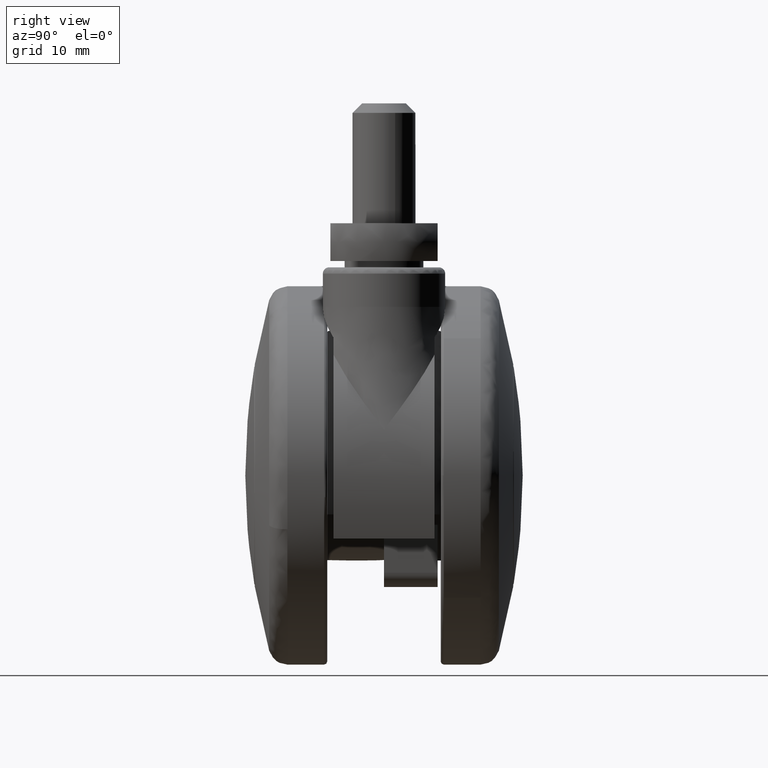
[diagram: clean part render]
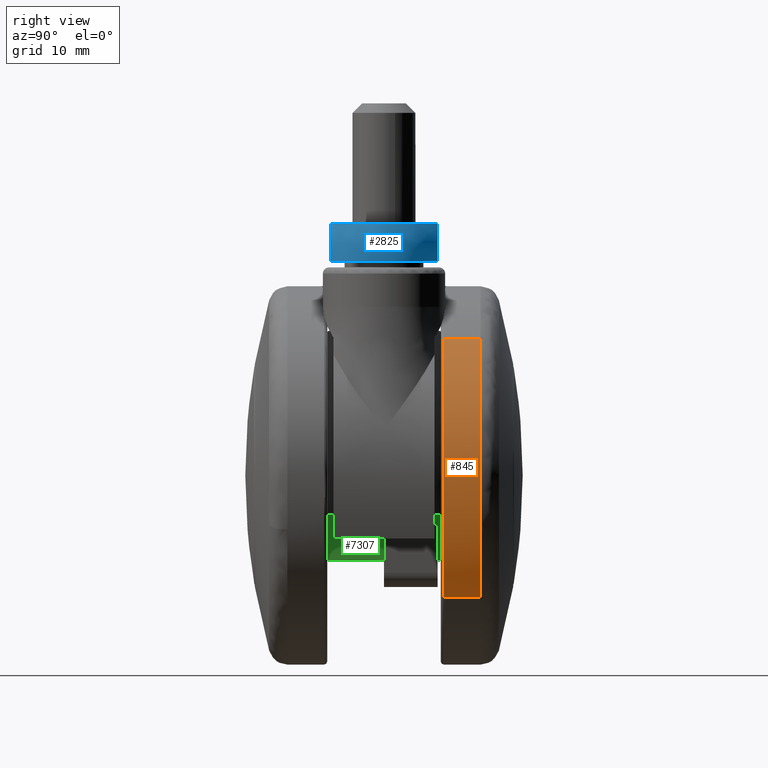
[diagram: same view with three faces highlighted in distinct colors, each labeled with its STEP entity id]
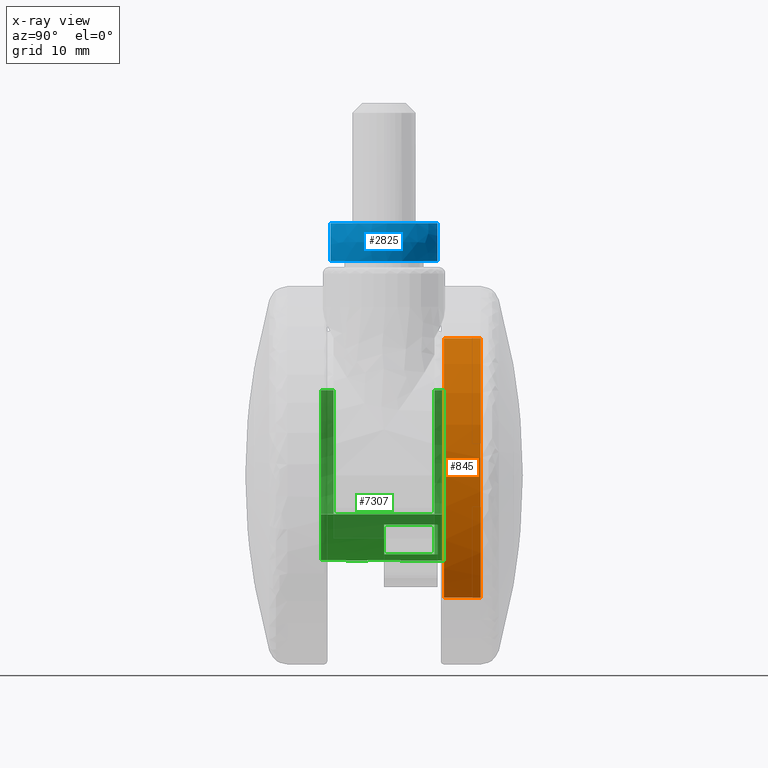
[diagram: x-ray of the same camera — body ghosted, the three highlighted faces saturated]
A machine part, right view with three faces highlighted in distinct colors.
The next image is the same camera in x-ray (body ghosted, the three faces saturated) — at least one of them is partly hidden behind the body in this view.
Their STEP definitions:

[orange] entity #845 — the highlighted face is a freeform B-spline surface patch.
#628=CARTESIAN_POINT('',(-22.906671958253089,-15.324326000000170,-19.372257994280488));
#629=VERTEX_POINT('',#628);
#645=CARTESIAN_POINT('',(-22.906671925308000,-9.499999999263743,-19.372258033236310));
#646=VERTEX_POINT('',#645);
#647=CARTESIAN_POINT('',(-22.906671925308000,-9.499999999263743,-19.372258033236310));
#648=CARTESIAN_POINT('',(-22.906671958253089,-15.324326000000170,-19.372257994280488));
#649=QUASI_UNIFORM_CURVE('',1,(#647,#648),.UNSPECIFIED.,.F.,.U.);
#650=EDGE_CURVE('',#646,#629,#649,.T.);
#699=CARTESIAN_POINT('',(-20.650636494735870,-9.499999999429269,21.761231866837889));
#700=VERTEX_POINT('',#699);
#714=CARTESIAN_POINT('',(-20.650636504086009,-15.324326000000100,21.761231857964962));
#715=VERTEX_POINT('',#714);
#716=CARTESIAN_POINT('',(-20.650636494735870,-9.499999999429269,21.761231866837889));
#717=CARTESIAN_POINT('',(-20.650636504086009,-15.324326000000100,21.761231857964962));
#718=QUASI_UNIFORM_CURVE('',1,(#716,#717),.UNSPECIFIED.,.F.,.U.);
#719=EDGE_CURVE('',#700,#715,#718,.T.);
#784=CARTESIAN_POINT('',(-20.650637270812609,-9.354391847863754,21.761231130368621));
#785=CARTESIAN_POINT('',(-41.200930745252087,-9.354391847863754,2.259730787533548));
#786=CARTESIAN_POINT('',(-22.906669288213937,-9.354391847863754,-19.372261151460755));
#787=CARTESIAN_POINT('',(-20.650637270812609,-15.473574354049020,21.761231130368621));
#788=CARTESIAN_POINT('',(-41.200930745252087,-15.473574354049017,2.259730787533548));
#789=CARTESIAN_POINT('',(-22.906669288213937,-15.473574354049017,-19.372261151460755));
#797=(BOUNDED_SURFACE()B_SPLINE_SURFACE(2,1,((#784,#787),(#785,#788),(#786,#789)),.UNSPECIFIED.,.F.,.F.,.U.)B_SPLINE_SURFACE_WITH_KNOTS((3,3),(2,2),(0.0,47.704306761263702),(0.0,6.119182506185267),.UNSPECIFIED.)GEOMETRIC_REPRESENTATION_ITEM()RATIONAL_B_SPLINE_SURFACE(((1.0,1.0),(0.718822509939086,0.718822509939086),(0.977505800795127,0.977505800795127)))REPRESENTATION_ITEM('')SURFACE());
#798=CARTESIAN_POINT('',(-20.650636504086027,-15.324326000000100,21.761231857964983));
#799=CARTESIAN_POINT('',(-30.0,-15.324326000000106,12.889017805063213));
#800=CARTESIAN_POINT('',(-30.0,-15.324326000000100,-1.653219E-015));
#801=CARTESIAN_POINT('',(-30.0,-15.324326000000099,-10.984772209580642));
#802=CARTESIAN_POINT('',(-22.906671958253089,-15.324326000000172,-19.372257994280485));
#810=(BOUNDED_CURVE()B_SPLINE_CURVE(2,(#798,#799,#800,#801,#802),.UNSPECIFIED.,.F.,.U.)B_SPLINE_CURVE_WITH_KNOTS((3,2,3),(0.621049521341824,0.750000000000000,0.862408068890895),.UNSPECIFIED.)CURVE()GEOMETRIC_REPRESENTATION_ITEM()RATIONAL_B_SPLINE_CURVE((0.853699661763192,0.848925116953086,1.0,0.868305755527766,0.855039476696886))REPRESENTATION_ITEM(''));
#811=EDGE_CURVE('',#715,#629,#810,.T.);
#812=ORIENTED_EDGE('',*,*,#811,.F.);
#813=ORIENTED_EDGE('',*,*,#719,.F.);
#814=CARTESIAN_POINT('',(-30.0,-9.499999997921702,1.242836E-014));
#815=VERTEX_POINT('',#814);
#816=CARTESIAN_POINT('',(-20.650636494735888,-9.499999999429246,21.761231866837889));
#817=CARTESIAN_POINT('',(-29.999999999999936,-9.499999998814607,12.889017812697901));
#818=CARTESIAN_POINT('',(-30.0,-9.499999997921702,1.242836E-014));
#826=(BOUNDED_CURVE()B_SPLINE_CURVE(2,(#816,#817,#818),.UNSPECIFIED.,.F.,.U.)B_SPLINE_CURVE_WITH_KNOTS((3,3),(0.621049521276981,0.749999999999999),.UNSPECIFIED.)CURVE()GEOMETRIC_REPRESENTATION_ITEM()RATIONAL_B_SPLINE_CURVE((0.853699661767994,0.848925116877117,0.999999999999998))REPRESENTATION_ITEM(''));
#827=EDGE_CURVE('',#700,#815,#826,.T.);
#828=ORIENTED_EDGE('',*,*,#827,.T.);
#829=CARTESIAN_POINT('',(-30.000000000000011,-9.499999997921705,1.242836E-014));
#830=CARTESIAN_POINT('',(-30.0,-9.499999998682689,-10.984772238510228));
#831=CARTESIAN_POINT('',(-22.906671925308004,-9.499999999263743,-19.372258033236317));
#839=(BOUNDED_CURVE()B_SPLINE_CURVE(2,(#829,#830,#831),.UNSPECIFIED.,.F.,.U.)B_SPLINE_CURVE_WITH_KNOTS((3,3),(0.750000000000000,0.862408069147947),.UNSPECIFIED.)CURVE()GEOMETRIC_REPRESENTATION_ITEM()RATIONAL_B_SPLINE_CURVE((1.0,0.868305755226611,0.855039476636212))REPRESENTATION_ITEM(''));
#840=EDGE_CURVE('',#815,#646,#839,.T.);
#841=ORIENTED_EDGE('',*,*,#840,.T.);
#842=ORIENTED_EDGE('',*,*,#650,.T.);
#843=EDGE_LOOP('',(#812,#813,#828,#841,#842));
#844=FACE_OUTER_BOUND('',#843,.T.);
#845=ADVANCED_FACE('',(#844),#797,.T.);

[blue] entity #2825 — the highlighted face is a freeform B-spline surface patch.
#2575=CARTESIAN_POINT('',(22.267826903324650,8.500000000000000,34.0));
#2576=VERTEX_POINT('',#2575);
#2583=CARTESIAN_POINT('',(22.267826915622049,8.500000000000000,40.0));
#2584=VERTEX_POINT('',#2583);
#2590=CARTESIAN_POINT('',(22.267826903324650,8.500000000000000,34.0));
#2591=CARTESIAN_POINT('',(22.334983241168739,8.500000000000002,34.112491042615488));
#2592=CARTESIAN_POINT('',(22.398567388449258,8.499999999999998,34.227495553251870));
#2593=CARTESIAN_POINT('',(22.518411288828950,8.500000000000002,34.462658171517731));
#2594=CARTESIAN_POINT('',(22.574777453791722,8.500000000000000,34.583139904142641));
#2595=CARTESIAN_POINT('',(22.730261735484842,8.500000000000000,34.947023042857793));
#2596=CARTESIAN_POINT('',(22.816694363230699,8.500000000000002,35.194356753575690));
#2597=CARTESIAN_POINT('',(22.955909452838149,8.499999999999998,35.698294523716037));
#2598=CARTESIAN_POINT('',(23.008693105005431,8.500000000000000,35.954898255218893));
#2599=CARTESIAN_POINT('',(23.061879759538780,8.500000000000000,36.346963563337987));
#2600=CARTESIAN_POINT('',(23.075271971507640,8.500000000000002,36.479305299721361));
#2601=CARTESIAN_POINT('',(23.092890961339009,8.500000000000000,36.742746714432641));
#2602=CARTESIAN_POINT('',(23.097189781211920,8.500000000000002,36.874143072982463));
#2603=CARTESIAN_POINT('',(23.096837478866561,8.499999999999998,37.267379470799590));
#2604=CARTESIAN_POINT('',(23.078994585671310,8.500000000000002,37.528270930281671));
#2605=CARTESIAN_POINT('',(23.025877321016971,8.499999999999998,37.917713161515529));
#2606=CARTESIAN_POINT('',(23.003765123912391,8.499999999999998,38.047210384850189));
#2607=CARTESIAN_POINT('',(22.950560278992679,8.500000000000000,38.305559074856468));
#2608=CARTESIAN_POINT('',(22.919325779412411,8.500000000000000,38.434846171128953));
#2609=CARTESIAN_POINT('',(22.813286985125590,8.500000000000000,38.816478002368143));
#2610=CARTESIAN_POINT('',(22.726099055095649,8.500000000000004,39.063754872715428));
#2611=CARTESIAN_POINT('',(22.520443688352341,8.500000000000000,39.542951833184652));
#2612=CARTESIAN_POINT('',(22.402176168240828,8.500000000000000,39.774958509520140));
#2613=CARTESIAN_POINT('',(22.267826915622049,8.500000000000000,40.0));
#2614=B_SPLINE_CURVE_WITH_KNOTS('',3,(#2590,#2591,#2592,#2593,#2594,#2595,#2596,#2597,#2598,#2599,#2600,#2601,#2602,#2603,#2604,#2605,#2606,#2607,#2608,#2609,#2610,#2611,#2612,#2613),.UNSPECIFIED.,.F.,.U.,(4,2,2,2,2,2,2,2,2,2,2,4),(0.0,0.015625000000000,0.031250000000000,0.062500000000000,0.093750000000000,0.109375000000001,0.125000000000001,0.156250000000001,0.171875000000001,0.187500000000001,0.218750000000000,0.249801643268790),.UNSPECIFIED.);
#2615=EDGE_CURVE('',#2576,#2584,#2614,.T.);
#2625=CARTESIAN_POINT('',(22.267826903324650,-8.500000000000000,34.0));
#2626=VERTEX_POINT('',#2625);
#2627=CARTESIAN_POINT('',(22.267826915622098,-8.500000000000000,39.999999979401053));
#2628=VERTEX_POINT('',#2627);
#2629=CARTESIAN_POINT('',(22.267826903324661,-8.499999999999996,33.999999999999993));
#2630=CARTESIAN_POINT('',(22.334983241168750,-8.500000000000000,34.112491042615503));
#2631=CARTESIAN_POINT('',(22.398567388449269,-8.499999999999996,34.227495553251870));
#2632=CARTESIAN_POINT('',(22.518411288828961,-8.499999999999998,34.462658171517752));
#2633=CARTESIAN_POINT('',(22.574777453791729,-8.499999999999995,34.583139904142627));
#2634=CARTESIAN_POINT('',(22.730261735484831,-8.499999999999995,34.947023042857779));
#2635=CARTESIAN_POINT('',(22.816694363230699,-8.499999999999996,35.194356753575683));
#2636=CARTESIAN_POINT('',(22.955909452838160,-8.499999999999995,35.698294523716029));
#2637=CARTESIAN_POINT('',(23.008693105005431,-8.499999999999995,35.954898255218893));
#2638=CARTESIAN_POINT('',(23.061879759538780,-8.499999999999995,36.346963563337987));
#2639=CARTESIAN_POINT('',(23.075271971507640,-8.499999999999996,36.479305299721339));
#2640=CARTESIAN_POINT('',(23.092890961339020,-8.499999999999996,36.742746714432641));
#2641=CARTESIAN_POINT('',(23.097189781211920,-8.499999999999996,36.874143072982463));
#2642=CARTESIAN_POINT('',(23.096837478866561,-8.499999999999995,37.267379470799582));
#2643=CARTESIAN_POINT('',(23.078994585671321,-8.499999999999998,37.528270930281671));
#2644=CARTESIAN_POINT('',(23.025877321016988,-8.499999999999995,37.917713161515522));
#2645=CARTESIAN_POINT('',(23.003765123912402,-8.499999999999998,38.047210384850210));
#2646=CARTESIAN_POINT('',(22.950560278992700,-8.499999999999995,38.305559074856468));
#2647=CARTESIAN_POINT('',(22.919325779412421,-8.499999999999995,38.434846171128960));
#2648=CARTESIAN_POINT('',(22.813286985125600,-8.499999999999993,38.816478002368143));
#2649=CARTESIAN_POINT('',(22.726099055095649,-8.499999999999995,39.063754872715407));
#2650=CARTESIAN_POINT('',(22.520443690658020,-8.499999999999995,39.542951827812232));
#2651=CARTESIAN_POINT('',(22.402176173561511,-8.499999999999995,39.774958499082473));
#2652=CARTESIAN_POINT('',(22.267826915622098,-8.500000000000000,39.999999979401053));
#2653=B_SPLINE_CURVE_WITH_KNOTS('',3,(#2629,#2630,#2631,#2632,#2633,#2634,#2635,#2636,#2637,#2638,#2639,#2640,#2641,#2642,#2643,#2644,#2645,#2646,#2647,#2648,#2649,#2650,#2651,#2652),.UNSPECIFIED.,.F.,.U.,(4,2,2,2,2,2,2,2,2,2,2,4),(0.0,0.015625000000001,0.031250000000001,0.062500000000004,0.093750000000006,0.109375000000007,0.125000000000008,0.156250000000011,0.171875000000013,0.187500000000014,0.218750000000016,0.249801642570325),.UNSPECIFIED.);
#2654=EDGE_CURVE('',#2626,#2628,#2653,.T.);
#2735=CARTESIAN_POINT('',(22.267826915622049,8.500000000000000,40.0));
#2736=CARTESIAN_POINT('',(27.000000020647626,5.567262487995726,39.999999979401039));
#2737=CARTESIAN_POINT('',(27.000000020647619,0.0,39.999999979401053));
#2738=CARTESIAN_POINT('',(27.000000020647626,-5.567262487995699,39.999999979401039));
#2739=CARTESIAN_POINT('',(22.267826915622091,-8.499999999999989,39.999999979401053));
#2747=(BOUNDED_CURVE()B_SPLINE_CURVE(2,(#2735,#2736,#2737,#2738,#2739),.UNSPECIFIED.,.F.,.U.)B_SPLINE_CURVE_WITH_KNOTS((3,2,3),(0.0,0.500000000000000,1.0),.UNSPECIFIED.)CURVE()GEOMETRIC_REPRESENTATION_ITEM()RATIONAL_B_SPLINE_CURVE((1.0,0.873722693557437,1.0,0.873722693557437,1.0))REPRESENTATION_ITEM(''));
#2748=EDGE_CURVE('',#2584,#2628,#2747,.T.);
#2771=CARTESIAN_POINT('',(22.267826903324650,8.500000000000000,34.0));
#2772=CARTESIAN_POINT('',(27.000000020647619,5.567262494842013,34.000000020598947));
#2773=CARTESIAN_POINT('',(27.000000020647619,0.0,34.000000020598947));
#2774=CARTESIAN_POINT('',(27.000000020647619,-5.567262494842013,34.000000020598947));
#2775=CARTESIAN_POINT('',(22.267826903324650,-8.500000000000000,34.0));
#2783=(BOUNDED_CURVE()B_SPLINE_CURVE(2,(#2771,#2772,#2773,#2774,#2775),.UNSPECIFIED.,.F.,.U.)B_SPLINE_CURVE_WITH_KNOTS((3,2,3),(0.0,0.500000000000000,1.0),.UNSPECIFIED.)CURVE()GEOMETRIC_REPRESENTATION_ITEM()RATIONAL_B_SPLINE_CURVE((1.0,0.873722693303212,1.0,0.873722693303212,1.0))REPRESENTATION_ITEM(''));
#2784=EDGE_CURVE('',#2576,#2626,#2783,.T.);
#2796=CARTESIAN_POINT('',(21.656327215090670,8.743483306298941,33.716165167152013));
#2797=CARTESIAN_POINT('',(22.192967301305782,9.751166705374951,37.000000508377255));
#2798=CARTESIAN_POINT('',(21.656327066851581,8.743483027940926,40.283835739960033));
#2799=CARTESIAN_POINT('',(26.906052869913538,5.947750806792567,33.716165167152006));
#2800=CARTESIAN_POINT('',(28.047722005392970,6.633227011170749,37.000000508377255));
#2801=CARTESIAN_POINT('',(26.906052554543887,5.947750617439644,40.283835739960033));
#2802=CARTESIAN_POINT('',(26.906052869913548,0.0,33.716165167152027));
#2803=CARTESIAN_POINT('',(28.047722005392970,0.0,37.000000508377255));
#2804=CARTESIAN_POINT('',(26.906052554543901,0.0,40.283835739960018));
#2805=CARTESIAN_POINT('',(26.906052869913538,-5.947751379674218,33.716165167152013));
#2806=CARTESIAN_POINT('',(28.047722005392970,-6.633227650076810,37.000000508377248));
#2807=CARTESIAN_POINT('',(26.906052554543891,-5.947751190321276,40.283835739960018));
#2808=CARTESIAN_POINT('',(21.656326471762704,-8.743483702156956,33.716165167152035));
#2809=CARTESIAN_POINT('',(22.192966472309518,-9.751167146855460,37.000000508377269));
#2810=CARTESIAN_POINT('',(21.656326323523619,-8.743483423798926,40.283835739960018));
#2818=(BOUNDED_SURFACE()B_SPLINE_SURFACE(2,2,((#2796,#2799,#2802,#2805,#2808),(#2797,#2800,#2803,#2806,#2809),(#2798,#2801,#2804,#2807,#2810)),.UNSPECIFIED.,.F.,.F.,.U.)B_SPLINE_SURFACE_WITH_KNOTS((3,3),(3,2,3),(0.0,6.754970811932951),(0.0,11.582070880209770,23.164142653807541),.UNSPECIFIED.)GEOMETRIC_REPRESENTATION_ITEM()RATIONAL_B_SPLINE_SURFACE(((0.833809151924135,0.765291032257771,0.955619197903836,0.765291017576727,0.833809162494486),(0.787569830891440,0.722851419257182,0.902624837293960,0.722851405390282,0.787569840875606),(0.833809165446999,0.765291044669396,0.955619213402236,0.765291029988351,0.833809176017350)))REPRESENTATION_ITEM('')SURFACE());
#2819=ORIENTED_EDGE('',*,*,#2784,.F.);
#2820=ORIENTED_EDGE('',*,*,#2615,.T.);
#2821=ORIENTED_EDGE('',*,*,#2748,.T.);
#2822=ORIENTED_EDGE('',*,*,#2654,.F.);
#2823=EDGE_LOOP('',(#2819,#2820,#2821,#2822));
#2824=FACE_OUTER_BOUND('',#2823,.T.);
#2825=ADVANCED_FACE('',(#2824),#2818,.T.);

[green] entity #7307 — the highlighted face is a freeform B-spline surface patch.
#4992=CARTESIAN_POINT('',(0.0,10.0,13.500000000000000));
#4993=VERTEX_POINT('',#4992);
#5026=CARTESIAN_POINT('',(12.0,10.0,-6.184658438426480));
#5027=VERTEX_POINT('',#5026);
#5055=CARTESIAN_POINT('',(0.0,10.0,13.500000000000000));
#5056=CARTESIAN_POINT('',(-11.512032645037300,10.0,13.500000000000000));
#5057=CARTESIAN_POINT('',(-13.330507916871690,10.0,2.132500569336663));
#5058=CARTESIAN_POINT('',(-15.148983188706090,10.0,-9.234998861326675));
#5059=CARTESIAN_POINT('',(-4.211454181077892,10.0,-12.826287603226490));
#5060=CARTESIAN_POINT('',(6.726074826550300,10.0,-16.417576345126307));
#5061=CARTESIAN_POINT('',(12.000000000000011,10.0,-6.184658438426480));
#5069=(BOUNDED_CURVE()B_SPLINE_CURVE(2,(#5055,#5056,#5057,#5058,#5059,#5060,#5061),.UNSPECIFIED.,.F.,.U.)B_SPLINE_CURVE_WITH_KNOTS((3,2,2,3),(0.0,0.333333333333333,0.666666666666667,1.0),.UNSPECIFIED.)CURVE()GEOMETRIC_REPRESENTATION_ITEM()RATIONAL_B_SPLINE_CURVE((1.0,0.760908340451085,1.0,0.760908340451085,1.0,0.760908340451085,1.0))REPRESENTATION_ITEM(''));
#5070=EDGE_CURVE('',#4993,#5027,#5069,.T.);
#5104=CARTESIAN_POINT('',(0.0,-10.0,13.500000000000000));
#5105=VERTEX_POINT('',#5104);
#5121=CARTESIAN_POINT('',(12.0,-10.0,-6.184658438426480));
#5122=VERTEX_POINT('',#5121);
#5123=CARTESIAN_POINT('',(12.000000000000011,-10.0,-6.184658438426474));
#5124=CARTESIAN_POINT('',(6.726074826550309,-10.0,-16.417576345126310));
#5125=CARTESIAN_POINT('',(-4.211454181077886,-10.0,-12.826287603226490));
#5126=CARTESIAN_POINT('',(-15.148983188706080,-10.0,-9.234998861326682));
#5127=CARTESIAN_POINT('',(-13.330507916871690,-10.0,2.132500569336657));
#5128=CARTESIAN_POINT('',(-11.512032645037301,-10.0,13.500000000000004));
#5129=CARTESIAN_POINT('',(0.0,-10.0,13.500000000000000));
#5137=(BOUNDED_CURVE()B_SPLINE_CURVE(2,(#5123,#5124,#5125,#5126,#5127,#5128,#5129),.UNSPECIFIED.,.F.,.U.)B_SPLINE_CURVE_WITH_KNOTS((3,2,2,3),(0.0,0.333333333333333,0.666666666666667,1.0),.UNSPECIFIED.)CURVE()GEOMETRIC_REPRESENTATION_ITEM()RATIONAL_B_SPLINE_CURVE((1.0,0.760908340451085,1.0,0.760908340451085,1.0,0.760908340451085,1.0))REPRESENTATION_ITEM(''));
#5138=EDGE_CURVE('',#5122,#5105,#5137,.T.);
#5708=CARTESIAN_POINT('',(11.0,0.0,-7.826237921249259));
#5709=VERTEX_POINT('',#5708);
#5715=CARTESIAN_POINT('',(5.0,0.0,-12.539936203984460));
#5716=VERTEX_POINT('',#5715);
#5717=CARTESIAN_POINT('',(4.999999999999996,0.0,-12.539936203984450));
#5718=CARTESIAN_POINT('',(8.694342234395652,0.0,-11.066905490629710));
#5719=CARTESIAN_POINT('',(11.0,0.0,-7.826237921249261));
#5727=(BOUNDED_CURVE()B_SPLINE_CURVE(2,(#5717,#5718,#5719),.UNSPECIFIED.,.F.,.U.)CURVE()GEOMETRIC_REPRESENTATION_ITEM()QUASI_UNIFORM_CURVE()RATIONAL_B_SPLINE_CURVE((1.0,0.959238558692230,1.0))REPRESENTATION_ITEM(''));
#5728=EDGE_CURVE('',#5716,#5709,#5727,.T.);
#5782=CARTESIAN_POINT('',(5.0,8.500000000000000,-12.539936203984441));
#5783=VERTEX_POINT('',#5782);
#5789=CARTESIAN_POINT('',(11.0,8.500000000000000,-7.826237921249259));
#5790=VERTEX_POINT('',#5789);
#5791=CARTESIAN_POINT('',(5.000000000000004,8.500000000000000,-12.539936203984450));
#5792=CARTESIAN_POINT('',(8.694342234395650,8.500000000000000,-11.066905490629708));
#5793=CARTESIAN_POINT('',(11.0,8.500000000000000,-7.826237921249261));
#5801=(BOUNDED_CURVE()B_SPLINE_CURVE(2,(#5791,#5792,#5793),.UNSPECIFIED.,.F.,.U.)CURVE()GEOMETRIC_REPRESENTATION_ITEM()QUASI_UNIFORM_CURVE()RATIONAL_B_SPLINE_CURVE((1.0,0.959238558692230,1.0))REPRESENTATION_ITEM(''));
#5802=EDGE_CURVE('',#5783,#5790,#5801,.T.);
#5864=CARTESIAN_POINT('',(11.0,8.500000000000000,-7.826237921249259));
#5865=CARTESIAN_POINT('',(11.0,0.0,-7.826237921249259));
#5866=QUASI_UNIFORM_CURVE('',1,(#5864,#5865),.UNSPECIFIED.,.F.,.U.);
#5867=EDGE_CURVE('',#5790,#5709,#5866,.T.);
#5878=CARTESIAN_POINT('',(5.0,8.500000000000000,-12.539936203984441));
#5879=CARTESIAN_POINT('',(5.0,0.0,-12.539936203984460));
#5880=QUASI_UNIFORM_CURVE('',1,(#5878,#5879),.UNSPECIFIED.,.F.,.U.);
#5881=EDGE_CURVE('',#5783,#5716,#5880,.T.);
#5934=CARTESIAN_POINT('',(0.0,7.999999999999789,13.500000000000000));
#5935=VERTEX_POINT('',#5934);
#5948=CARTESIAN_POINT('',(0.0,7.999999999999789,13.500000000000000));
#5949=CARTESIAN_POINT('',(0.0,10.0,13.500000000000000));
#5950=QUASI_UNIFORM_CURVE('',1,(#5948,#5949),.UNSPECIFIED.,.F.,.U.);
#5951=EDGE_CURVE('',#5935,#4993,#5950,.T.);
#5967=CARTESIAN_POINT('',(0.0,-8.0,13.500000000000000));
#5968=VERTEX_POINT('',#5967);
#5974=CARTESIAN_POINT('',(0.0,-10.0,13.500000000000000));
#5975=CARTESIAN_POINT('',(0.0,-8.0,13.500000000000000));
#5976=QUASI_UNIFORM_CURVE('',1,(#5974,#5975),.UNSPECIFIED.,.F.,.U.);
#5977=EDGE_CURVE('',#5105,#5968,#5976,.T.);
#6227=CARTESIAN_POINT('',(12.0,10.0,-6.184658438426480));
#6228=CARTESIAN_POINT('',(12.0,-10.0,-6.184658438426480));
#6229=QUASI_UNIFORM_CURVE('',1,(#6227,#6228),.UNSPECIFIED.,.F.,.U.);
#6230=EDGE_CURVE('',#5027,#5122,#6229,.T.);
#6257=CARTESIAN_POINT('',(-5.099019513592780,7.999999999999789,-12.500000000000000));
#6258=VERTEX_POINT('',#6257);
#6264=CARTESIAN_POINT('',(-5.099019513592780,-8.0,-12.500000000000000));
#6265=VERTEX_POINT('',#6264);
#6266=CARTESIAN_POINT('',(-5.099019513592780,7.999999999999789,-12.500000000000000));
#6267=CARTESIAN_POINT('',(-5.099019513592780,-8.0,-12.500000000000000));
#6268=QUASI_UNIFORM_CURVE('',1,(#6266,#6267),.UNSPECIFIED.,.F.,.U.);
#6269=EDGE_CURVE('',#6258,#6265,#6268,.T.);
#7217=CARTESIAN_POINT('',(-5.099019513592777,-8.0,-12.500000000000000));
#7218=CARTESIAN_POINT('',(-15.385684458492184,-8.0,-8.303847577293375));
#7219=CARTESIAN_POINT('',(-13.247641299491770,-8.0,2.598076211353310));
#7220=CARTESIAN_POINT('',(-11.109598140491357,-8.0,13.499999999999998));
#7221=CARTESIAN_POINT('',(0.0,-8.0,13.500000000000000));
#7229=(BOUNDED_CURVE()B_SPLINE_CURVE(2,(#7217,#7218,#7219,#7220,#7221),.UNSPECIFIED.,.F.,.U.)B_SPLINE_CURVE_WITH_KNOTS((3,2,3),(0.0,0.500000000000000,1.0),.UNSPECIFIED.)CURVE()GEOMETRIC_REPRESENTATION_ITEM()RATIONAL_B_SPLINE_CURVE((1.0,0.772156101358357,1.0,0.772156101358357,1.0))REPRESENTATION_ITEM(''));
#7230=EDGE_CURVE('',#6265,#5968,#7229,.T.);
#7241=CARTESIAN_POINT('',(0.0,7.999999999999789,13.500000000000000));
#7242=CARTESIAN_POINT('',(-11.109598140491356,7.999999999999789,13.499999999999996));
#7243=CARTESIAN_POINT('',(-13.247641299491770,7.999999999999789,2.598076211353315));
#7244=CARTESIAN_POINT('',(-15.385684458492182,7.999999999999789,-8.303847577293372));
#7245=CARTESIAN_POINT('',(-5.099019513592782,7.999999999999789,-12.500000000000000));
#7253=(BOUNDED_CURVE()B_SPLINE_CURVE(2,(#7241,#7242,#7243,#7244,#7245),.UNSPECIFIED.,.F.,.U.)B_SPLINE_CURVE_WITH_KNOTS((3,2,3),(0.0,0.500000000000000,1.0),.UNSPECIFIED.)CURVE()GEOMETRIC_REPRESENTATION_ITEM()RATIONAL_B_SPLINE_CURVE((1.0,0.772156101358357,1.0,0.772156101358357,1.0))REPRESENTATION_ITEM(''));
#7254=EDGE_CURVE('',#5935,#6258,#7253,.T.);
#7269=CARTESIAN_POINT('',(12.157783383951241,10.500000000000000,-5.868415730750427));
#7270=CARTESIAN_POINT('',(12.157783383951241,-10.512499999999999,-5.868415730750427));
#7271=CARTESIAN_POINT('',(7.026401320377255,10.500000000000002,-16.499263041434656));
#7272=CARTESIAN_POINT('',(7.026401320377255,-10.512500000000001,-16.499263041434656));
#7273=CARTESIAN_POINT('',(-4.193992448291368,10.500000000000000,-12.832007923301591));
#7274=CARTESIAN_POINT('',(-4.193992448291368,-10.512499999999999,-12.832007923301591));
#7275=CARTESIAN_POINT('',(-15.414386216959988,10.500000000000002,-9.164752805168533));
#7276=CARTESIAN_POINT('',(-15.414386216959988,-10.512500000000001,-9.164752805168533));
#7277=CARTESIAN_POINT('',(-13.276821363236760,10.500000000000000,2.444588817920089));
#7278=CARTESIAN_POINT('',(-13.276821363236760,-10.512499999999999,2.444588817920089));
#7279=CARTESIAN_POINT('',(-11.139256509513517,10.500000000000002,14.053930441008712));
#7280=CARTESIAN_POINT('',(-11.139256509513517,-10.512500000000001,14.053930441008712));
#7281=CARTESIAN_POINT('',(0.651480740693012,10.500000000000000,13.484271313070870));
#7282=CARTESIAN_POINT('',(0.651480740693012,-10.512499999999999,13.484271313070870));
#7290=(BOUNDED_SURFACE()B_SPLINE_SURFACE(1,2,((#7269,#7271,#7273,#7275,#7277,#7279,#7281),(#7270,#7272,#7274,#7276,#7278,#7280,#7282)),.UNSPECIFIED.,.F.,.F.,.U.)B_SPLINE_SURFACE_WITH_KNOTS((2,2),(3,2,2,3),(0.0,21.012499999999999),(0.0,20.279340339526222,40.558680679052443,60.838021018578658),.UNSPECIFIED.)GEOMETRIC_REPRESENTATION_ITEM()RATIONAL_B_SPLINE_SURFACE(((1.0,0.752797991535748,1.0,0.752797991535748,1.0,0.752797991535748,1.0),(1.0,0.752797991535748,1.0,0.752797991535748,1.0,0.752797991535748,1.0)))REPRESENTATION_ITEM('')SURFACE());
#7291=ORIENTED_EDGE('',*,*,#6230,.T.);
#7292=ORIENTED_EDGE('',*,*,#5138,.T.);
#7293=ORIENTED_EDGE('',*,*,#5977,.T.);
#7294=ORIENTED_EDGE('',*,*,#7230,.F.);
#7295=ORIENTED_EDGE('',*,*,#6269,.F.);
#7296=ORIENTED_EDGE('',*,*,#7254,.F.);
#7297=ORIENTED_EDGE('',*,*,#5951,.T.);
#7298=ORIENTED_EDGE('',*,*,#5070,.T.);
#7299=EDGE_LOOP('',(#7291,#7292,#7293,#7294,#7295,#7296,#7297,#7298));
#7300=FACE_OUTER_BOUND('',#7299,.T.);
#7301=ORIENTED_EDGE('',*,*,#5867,.F.);
#7302=ORIENTED_EDGE('',*,*,#5802,.F.);
#7303=ORIENTED_EDGE('',*,*,#5881,.T.);
#7304=ORIENTED_EDGE('',*,*,#5728,.T.);
#7305=EDGE_LOOP('',(#7301,#7302,#7303,#7304));
#7306=FACE_BOUND('',#7305,.T.);
#7307=ADVANCED_FACE('',(#7300,#7306),#7290,.T.);